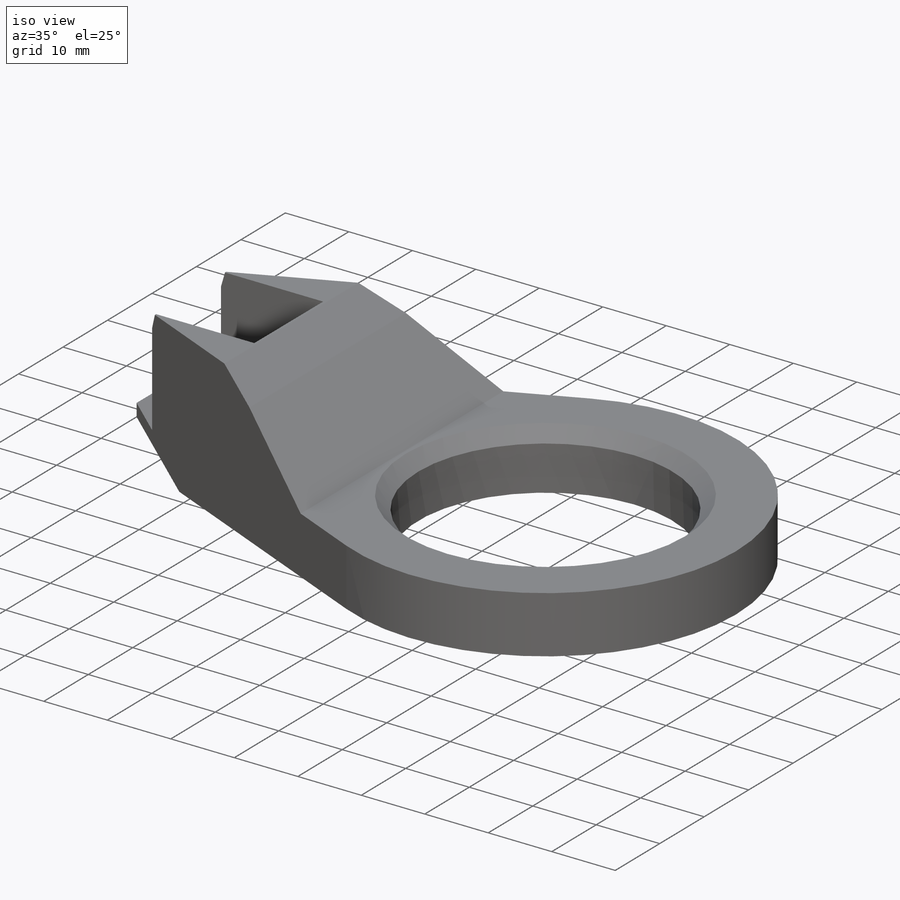
[diagram: iso view]
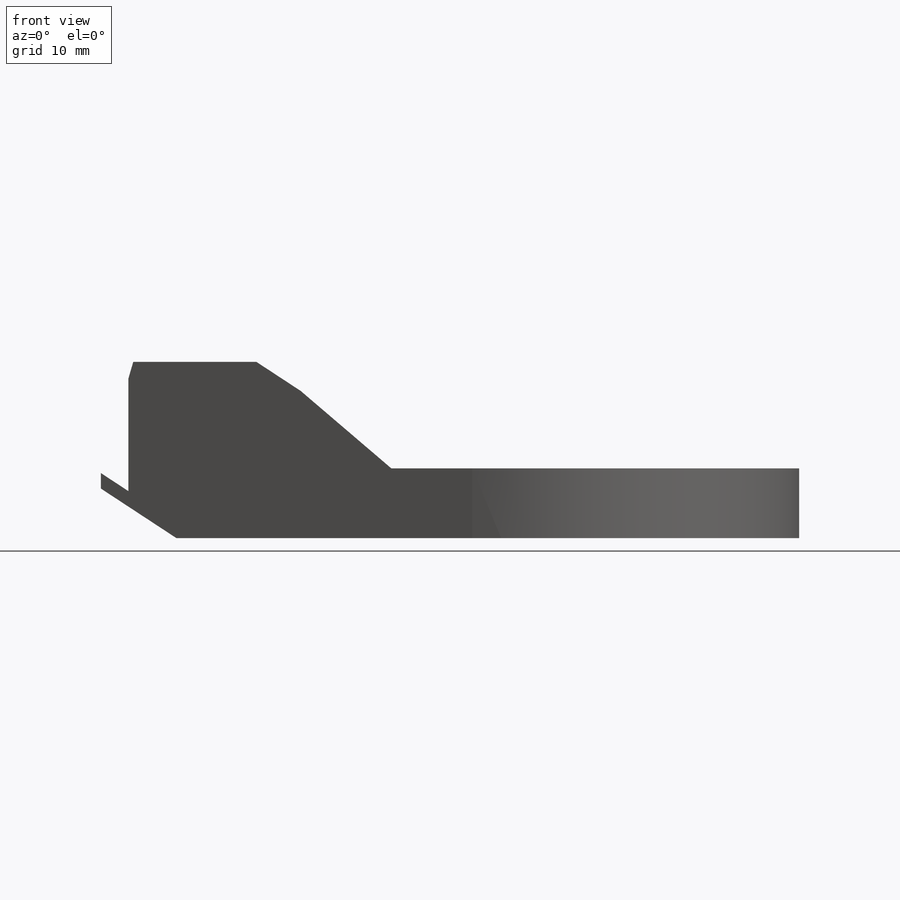
[diagram: front view]
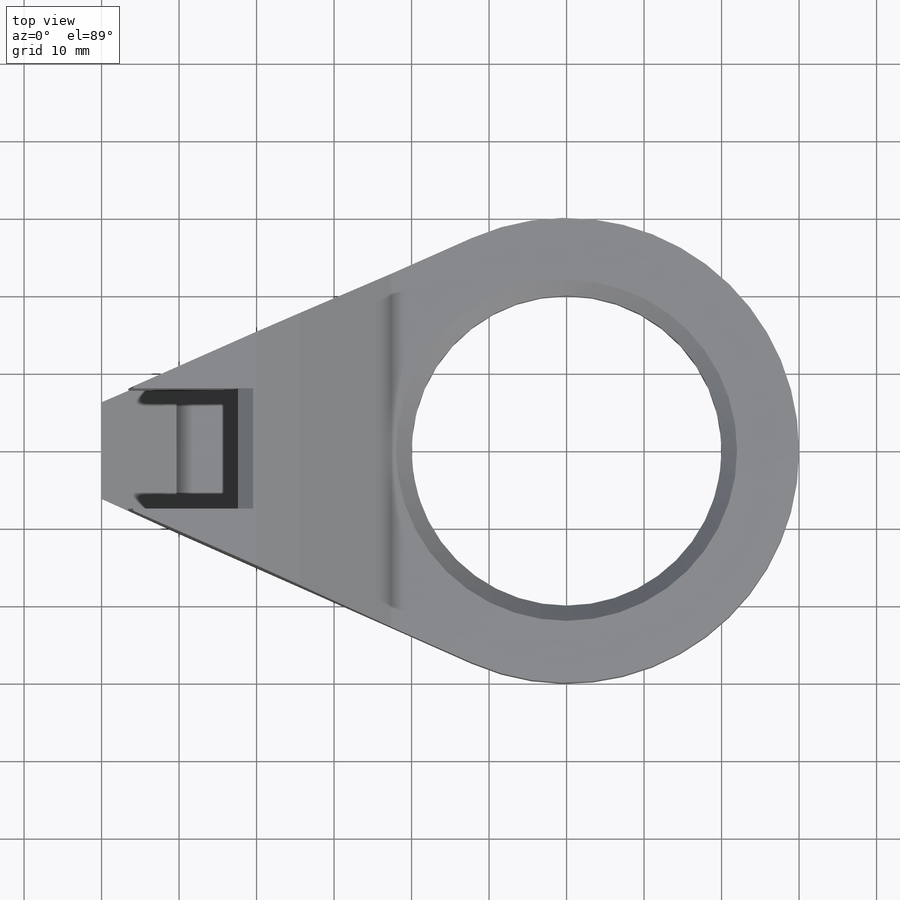
[diagram: top view]
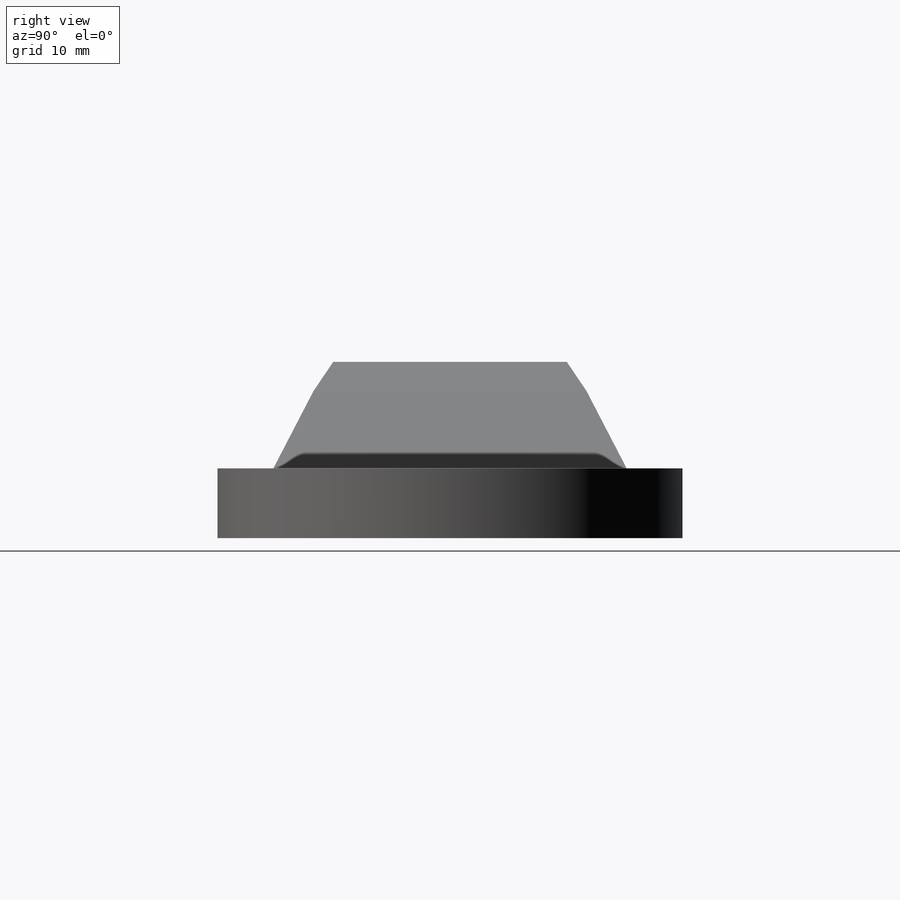
[diagram: right view]
SOLIDWORKS PART (.sldprt)
format: sldprt  version: not decoded by parser v0  size: 801,792 bytes
history: native  units: mm
features: sketch x18, extrude x8, cut_extrude x8, fillet x4, chamfer x4, shell x2, material x1, revolve x1 (+13 scaffold rows collapsed)
feature tree (59):
  scaffold x13  (default folders/planes/origin — collapsed)
  material  "Material <not specified>"
  sketch  "Sketch1"  dims[c1.D1=54.0mm c1.D2=5.0mm c1.D3=4.6mm c1.D4=8.0mm c1.D5=13.0mm c1.D6=7.0mm c1.D7=4.6mm c2.D1=39.5mm c2.D5=6.0mm]
  revolve  "Revolve1"  Angle=360deg
  fillet  "Fillet1"  Radius=2mm
  sketch  "Sketch2"  dims[D1=18.5mm D2=15.5mm D3=12.0mm]
  extrude  "Boss-Extrude1"  Depth=9.45mm
  sketch  "Sketch3"  dims[D1=7.8mm]
  extrude  "Boss-Extrude2"  Depth=4.75mm
  sketch  "Sketch4"  dims[c1.D3=20.0mm c1.D4=20.0mm c2.D3=20.0mm c2.D7=5.0mm c2.D1=40.0mm c2.D2=3.0mm c2.D4=2.0mm c2.D5=2.0mm c2.D6=10.0mm c3.D7=~18.984606mm c3.D2=3.0mm c3.D8=1.25mm c3.D9=10.0mm c3.D1=40.0mm c4.D2=9.0mm c4.D6=2.0mm]
  extrude  "Boss-Extrude3"  Depth=20mm
  sketch  "Sketch6"  dims[D1=1.0mm D2=40.0mm D3=3.0mm]
  extrude  "Boss-Extrude4"  Depth=20mm
  shell  "Shell1"  Thickness=3mm
  sketch  "Sketch7"  dims[D2=2.75mm D1=0.15mm]
  cut_extrude  "Cut-Extrude1"  [1 undecoded]
  chamfer  "Chamfer1"  Distance=3.5mm Angle=45deg
  sketch  "Sketch8"  dims[D2=2.75mm D1=45.0mm]
  cut_extrude  "Cut-Extrude2"  Depth=3.2mm
  sketch  "Sketch10"  dims[D1=1.5mm D2=3.0mm D3=1.0mm D4=4.5mm]
  cut_extrude  "Cut-Extrude3"  [1 undecoded]
  fillet  "Fillet2"  Radius=1mm
  sketch  "Sketch12"  dims[D1=25.0mm D2=3.0]
  sketch  "Sketch13"  dims[D1=5.45mm]
  cut_extrude  "Cut-Extrude4"  Depth=4mm
  sketch  "Sketch14"  dims[D1=5.5mm]
  cut_extrude  "Cut-Extrude5"  [1 undecoded]
  sketch  "Sketch15"  dims[D1=2.0mm D2=2.0mm D4=0.2mm D3=3.0]
  extrude  "Boss-Extrude5"  Depth=0.2mm
  sketch  "Sketch16"  dims[c1.D1=2.0mm c1.D2=~3.175426mm c2.D2=3.0]
  cut_extrude  "Cut-Extrude6"  Depth=1mm
  sketch  "Sketch17"  dims[D1=3.2mm]
  cut_extrude  "Cut-Extrude7"  [1 undecoded]
  fillet  "Fillet3"  Radius=1mm
  chamfer  "Chamfer2"  Distance=1mm Angle=45deg
  chamfer  "Chamfer3"  Distance=2.5mm Angle=45deg
  fillet  "Fillet4"  Radius=10mm
  sketch  "Sketch19"  dims[c1.D5=4.3mm c1.D8=26.0mm c1.D11=3.35mm c1.D1=52.0mm c1.D2=52.0mm c1.D3=6.0mm c1.D4=47.0mm c1.D6=20.0mm c2.D2=4.0mm c2.D7=32.0mm c2.D9=26.0mm c2.D10=~4.216496mm c2.D11=~2.443927mm c2.D12=~2.911675mm c3.D2=2.0mm c3.D1=1.2mm]
  extrude  "Boss-Extrude6"  Depth=7.5mm
  sketch  "Sketch20"  dims[D1=8.0mm D3=3.0mm D2=10.0mm]
  extrude  "Boss-Extrude7"  Depth=9mm
  sketch  "Sketch21"  dims[D2=2.0mm D1=3.0mm]
  extrude  "Boss-Extrude8"  [1 undecoded]
  sketch  "Sketch22"  dims[D1=0.0mm]
  cut_extrude  "Cut-Extrude8"  Depth=7.75mm
  chamfer  "Chamfer4"  Distance=2mm Angle=45deg
  shell  "Shell4"  Thickness=1mm
decode coverage: 40 of 45 modeling features carry decoded parameters
note: ~ marks probable driven/reference dimensions
note: 5 parameter values undecoded
summary: no parameter record found for 5 features
note: suppression state not decoded; provenance and decode notes live in map.json
